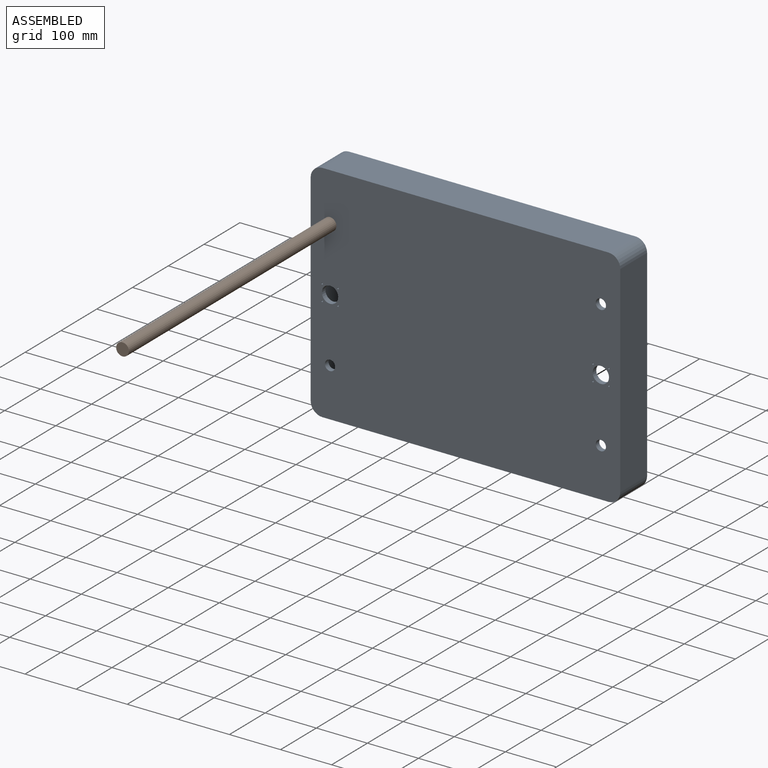
[diagram: assembled view]
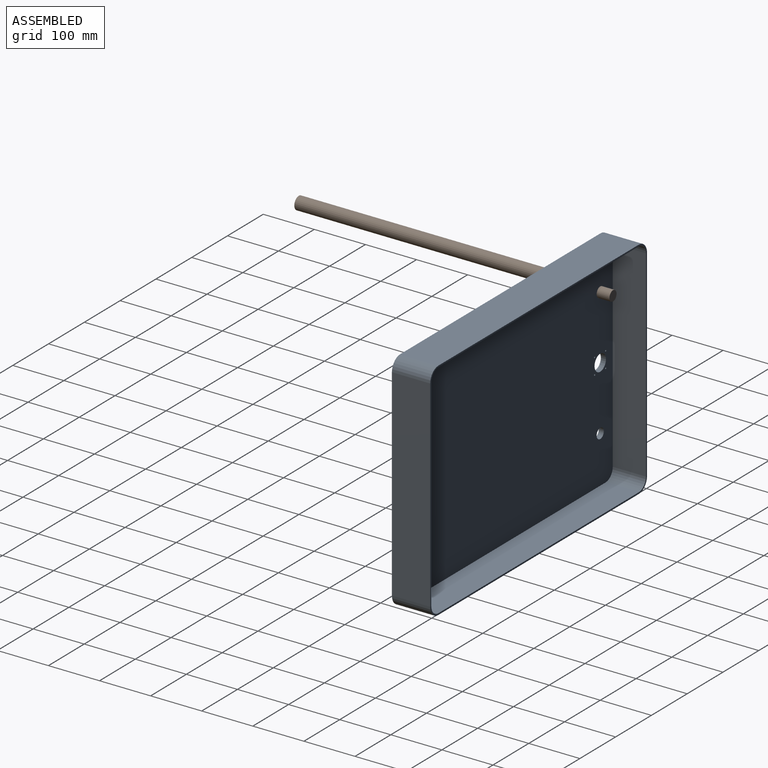
[diagram: assembled view, second angle]
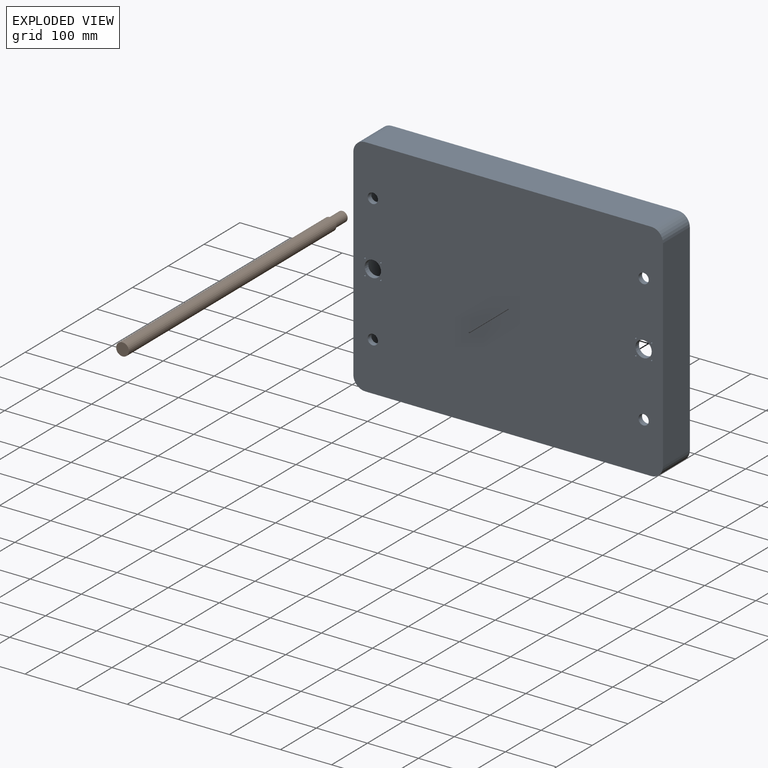
[diagram: exploded view]
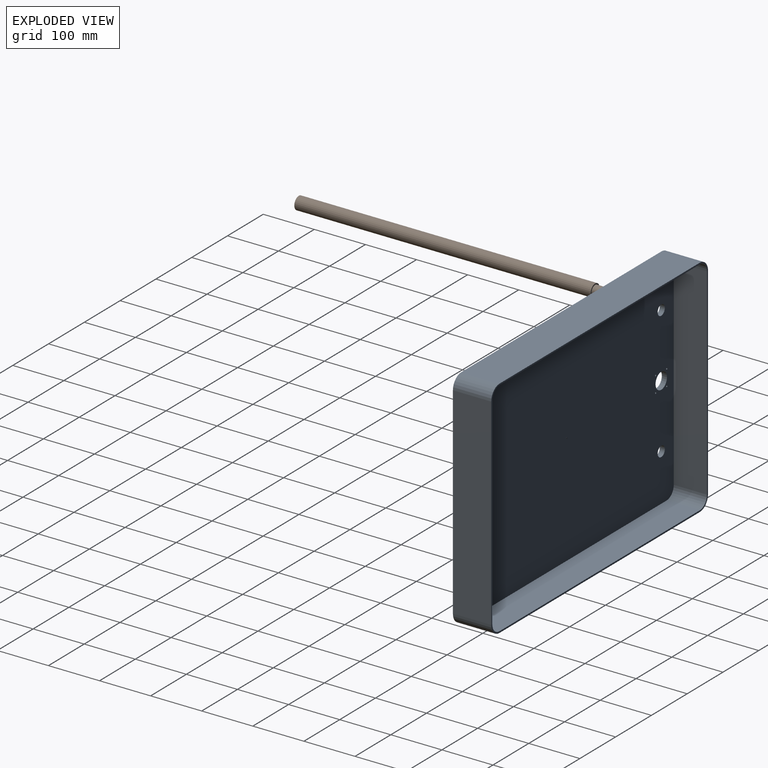
[diagram: exploded view, second angle]
ASSEMBLY  parts=2 mates=2
PART A: 33 faces, bbox 606x75x441 mm
  f0: plane 606x441mm, normal (0,-1,0), area 263857.6mm2, adj f2,f3,f4,f5,f6,f7,f8,f9
  f1: plane 600x435mm, normal (0,1,0), area 257722.4mm2, adj f2,f3,f4,f5,f6,f7,f8,f9
  f2: cylinder r=10.05mm len=20.1mm, axis (0,1,0), area 631.5mm2, adj f0,f1
  f3: cylinder r=10.05mm len=20.1mm, axis (0,1,0), area 631.5mm2, adj f0,f1
  f4: cylinder r=10.05mm len=20.1mm, axis (0,1,0), area 631.5mm2, adj f0,f1
  f5: cylinder r=10.05mm len=20.1mm, axis (0,1,0), area 631.5mm2, adj f0,f1
  f6: cylinder r=16mm len=32mm, axis (0,1,0), area 1005.3mm2, adj f0,f1
  f7: cylinder r=16mm len=32mm, axis (0,1,0), area 1005.3mm2, adj f0,f1
  f8: cylinder r=1.5mm len=10mm, axis (0,1,0), area 94.2mm2, adj f0,f1
  f9: cylinder r=1.5mm len=10mm, axis (0,1,0), area 94.2mm2, adj f0,f1
  f10: cylinder r=1.5mm len=10mm, axis (0,1,0), area 94.2mm2, adj f0,f1
  f11: cylinder r=1.5mm len=10mm, axis (0,1,0), area 94.2mm2, adj f0,f1
  f12: cylinder r=1.5mm len=10mm, axis (0,1,0), area 94.2mm2, adj f0,f1
  f13: cylinder r=1.5mm len=10mm, axis (0,1,0), area 94.2mm2, adj f0,f1
  f14: cylinder r=1.5mm len=10mm, axis (0,1,0), area 94.2mm2, adj f0,f1
  f15: cylinder r=1.5mm len=10mm, axis (0,1,0), area 94.2mm2, adj f0,f1
  f16: cylinder r=20mm len=65mm, axis (0,1,0), area 2042mm2, adj f1,f18,f23,f32
  f17: cylinder r=20mm len=65mm, axis (0,1,0), area 2042mm2, adj f1,f18,f19,f32
  f18: plane 560x65mm, normal (0,0,-1), area 36400mm2, adj f1,f16,f17,f32
  f19: plane 395x65mm, normal (1,0,0), area 25675mm2, adj f1,f17,f20,f32
  f20: cylinder r=20mm len=65mm, axis (0,1,0), area 2042mm2, adj f1,f19,f22,f32
  f21: cylinder r=20mm len=65mm, axis (0,1,0), area 2042mm2, adj f1,f22,f23,f32
  f22: plane 560x65mm, normal (0,0,1), area 36400mm2, adj f1,f20,f21,f32
  f23: plane 395x65mm, normal (-1,0,0), area 25675mm2, adj f1,f16,f21,f32
  f24: cylinder r=23mm len=75mm, axis (0,1,0), area 2709.6mm2, adj f0,f25,f31,f32
  f25: plane 560x75mm, normal (0,0,1), area 42000mm2, adj f0,f24,f26,f32
  f26: cylinder r=23mm len=75mm, axis (0,1,0), area 2709.6mm2, adj f0,f25,f27,f32
  f27: plane 395x75mm, normal (-1,0,0), area 29625mm2, adj f0,f26,f28,f32
  f28: cylinder r=23mm len=75mm, axis (0,1,0), area 2709.6mm2, adj f0,f27,f29,f32
  f29: plane 560x75mm, normal (0,0,-1), area 42000mm2, adj f0,f28,f30,f32
  f30: cylinder r=23mm len=75mm, axis (0,1,0), area 2709.6mm2, adj f0,f29,f31,f32
  f31: plane 395x75mm, normal (1,0,0), area 29625mm2, adj f0,f24,f30,f32
  f32: plane 606x441mm, normal (0,1,0), area 6135.3mm2, adj f16,f17,f18,f19,f20,f21,f22,f23
PART B: 5 faces, bbox 25x25x615 mm
  f0: cylinder r=12.5mm len=580mm, axis (0,0,-1), area 45553.1mm2, adj f1,f2
  f1: plane 25x25mm, normal (0,0,1), area 490.9mm2, adj f0
  f2: plane 25x25mm, normal (0,0,-1), area 176.7mm2, adj f0,f3
  f3: cylinder r=10mm len=35mm, axis (0,0,-1), area 2199.1mm2, adj f2,f4
  f4: plane 20x20mm, normal (0,0,-1), area 314.2mm2, adj f3
PLACE A t=(-265,-244.71,-95.5)mm
PLACE B rot(axis=(1,0,0),90deg) t=(-535,-234.71,29.5)mm
MATE planar A.f0 <-> B.f0  axis (0,-1,0) through (-270,-254.71,125)mm
MATE cylindrical B.f0 <-> A.f4  axis (0,1,0) through (-535,-254.71,29.5)mm
